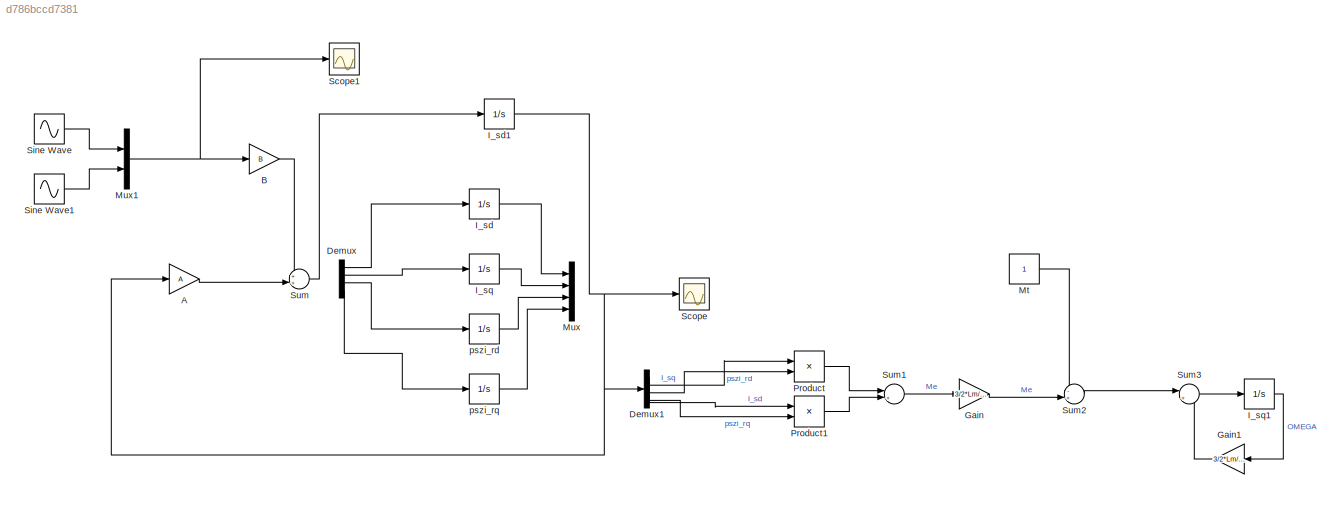
MODEL slx_d786bccd7381
KIND model
CONFIG AbsTol = auto
CONFIG FixedStep = 0.0001
CONFIG MaxStep = auto
CONFIG MinStep = auto
CONFIG RelTol = 1e-3
CONFIG SampleTimeConstraint = Unconstrained
CONFIG Solver = FixedStepAuto
CONFIG SolverMode = Auto
CONFIG SolverName = FixedStepAuto
CONFIG StartTime = 0.0
CONFIG StopTime = 1
BLOCK [Gain] A
  Gain = A
  Multiplication = Matrix(K*u)
  OutDataTypeStr = Inherit: Inherit via internal rule
  ParamDataTypeStr = Inherit: Inherit via internal rule
  SaturateOnIntegerOverflow = off
BLOCK [Gain] B
  Gain = B
  Multiplication = Matrix(K*u)
  OutDataTypeStr = Inherit: Inherit via internal rule
  ParamDataTypeStr = Inherit: Inherit via internal rule
  SaturateOnIntegerOverflow = off
BLOCK [Demux] Demux
  DisplayOption = bar
  Ports = [1, 4]
BLOCK [Demux] Demux1
  DisplayOption = bar
  Ports = [1, 4]
BLOCK [Gain] Gain
  Gain = 3/2*Lm/Lr
  OutDataTypeStr = Inherit: Inherit via internal rule
  ParamDataTypeStr = Inherit: Inherit via internal rule
  SaturateOnIntegerOverflow = off
BLOCK [Gain] Gain1
  Gain = 3/2*Lm/Lr
  OutDataTypeStr = Inherit: Inherit via internal rule
  ParamDataTypeStr = Inherit: Inherit via internal rule
  SaturateOnIntegerOverflow = off
BLOCK [Integrator] I_sd
  Commented = on
  ContinuousStateAttributes = 'i_sd'
  Ports = [1, 1]
BLOCK [Integrator] I_sd1
  ContinuousStateAttributes = 'i_sd'
  Ports = [1, 1]
BLOCK [Integrator] I_sq
  Ports = [1, 1]
BLOCK [Integrator] I_sq1
  Ports = [1, 1]
BLOCK [Constant] Mt
BLOCK [Mux] Mux
  DisplayOption = bar
  Ports = [4, 1]
BLOCK [Mux] Mux1
  DisplayOption = bar
  Inputs = 2
  Ports = [2, 1]
BLOCK [Product] Product
  InputSameDT = off
  OutDataTypeStr = Inherit: Inherit via internal rule
  Ports = [2, 1]
  RndMeth = Floor
  SaturateOnIntegerOverflow = off
BLOCK [Product] Product1
  InputSameDT = off
  OutDataTypeStr = Inherit: Inherit via internal rule
  Ports = [2, 1]
  RndMeth = Floor
  SaturateOnIntegerOverflow = off
BLOCK [Scope] Scope
  Ports = [1]
  ScopeSpecificationString = Simulink.scopes.TimeScopeBlockCfg('CurrentConfiguration', extmgr.ConfigurationSet(extmgr.Configuration('Core','General UI',true),extmgr.Configuration('Core','Source UI',true),extmgr.Configuration('Sources','WiredSimulink',true),extmgr.Configuration('Visuals','Time Domain',true,'SerializedDisplays',{struct('MinYLimReal','-0.00146','MaxYLimReal','0.00148','YLabelReal','','MinYLimMag','0.00000','MaxY...<+1478ch>
BLOCK [Scope] Scope1
  Ports = [1]
  ScopeSpecificationString = Simulink.scopes.TimeScopeBlockCfg('CurrentConfiguration', extmgr.ConfigurationSet(extmgr.Configuration('Core','General UI',true),extmgr.Configuration('Core','Source UI',true),extmgr.Configuration('Sources','WiredSimulink',true,'DataLoggingVariableName','ScopeData1'),extmgr.Configuration('Visuals','Time Domain',true,'SerializedDisplays',{struct('MinYLimReal','-3.11898','MaxYLimReal','3.63099','YLab...<+1432ch>
BLOCK [Sin] Sine Wave
  Amplitude = 0.8
  Frequency = 314
  Ports = [0, 1]
  SampleTime = 0
BLOCK [Sin] Sine Wave1
  Amplitude = 0.8
  Frequency = 314
  Phase = 1.5
  Ports = [0, 1]
  SampleTime = 0
BLOCK [Sum] Sum
  IconShape = round
  InputSameDT = off
  Inputs = ++|
  OutDataTypeStr = Inherit: Inherit via internal rule
  Ports = [2, 1]
  SaturateOnIntegerOverflow = off
BLOCK [Sum] Sum1
  IconShape = round
  InputSameDT = off
  Inputs = |+-|
  OutDataTypeStr = Inherit: Inherit via internal rule
  Ports = [2, 1]
  SaturateOnIntegerOverflow = off
BLOCK [Sum] Sum2
  IconShape = round
  InputSameDT = off
  Inputs = -+|
  OutDataTypeStr = Inherit: Inherit via internal rule
  Ports = [2, 1]
  SaturateOnIntegerOverflow = off
BLOCK [Sum] Sum3
  IconShape = round
  InputSameDT = off
  Inputs = |+-
  OutDataTypeStr = Inherit: Inherit via internal rule
  Ports = [2, 1]
  SaturateOnIntegerOverflow = off
BLOCK [Integrator] pszi_rd
  Ports = [1, 1]
BLOCK [Integrator] pszi_rq 
  Ports = [1, 1]
LINE A:1 -> Sum:2
LINE B:1 -> Sum:1
LINE Demux1:1 -> Product1:1
LINE Demux1:2 -> Product:1
LINE Demux1:3 -> Product:2
LINE Demux1:4 -> Product1:2
LINE Demux:1 -> I_sd:1
LINE Demux:2 -> I_sq:1
LINE Demux:3 -> pszi_rd:1
LINE Demux:4 -> pszi_rq :1
LINE Gain1:1 -> Sum3:2
LINE Gain:1 -> Sum2:2
NET I_sd1:1 -> A:1, Demux1:1, Scope:1
LINE I_sd:1 -> Mux:1
LINE I_sq1:1 -> Gain1:1
LINE I_sq:1 -> Mux:2
LINE Mt:1 -> Sum2:1
NET Mux1:1 -> B:1, Scope1:1
LINE Product1:1 -> Sum1:2
LINE Product:1 -> Sum1:1
LINE Sine Wave1:1 -> Mux1:2
LINE Sine Wave:1 -> Mux1:1
LINE Sum1:1 -> Gain:1
LINE Sum2:1 -> Sum3:1
LINE Sum3:1 -> I_sq1:1
LINE Sum:1 -> I_sd1:1
LINE pszi_rd:1 -> Mux:3
LINE pszi_rq :1 -> Mux:4
note: NET lines group one-source signal fan-out (src -> all destinations, sorted); 1:1 wires keep LINE
